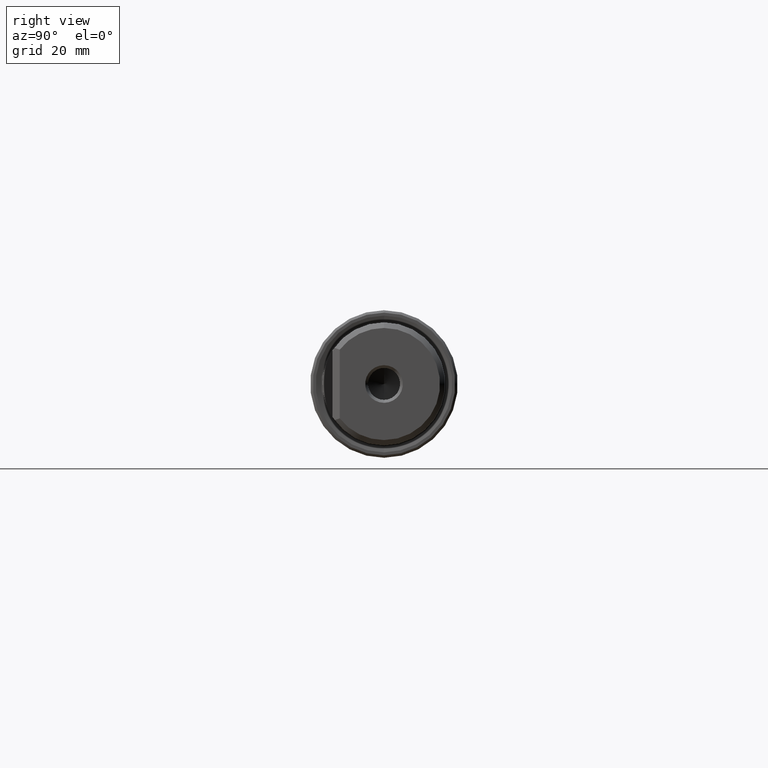
[diagram: clean part render]
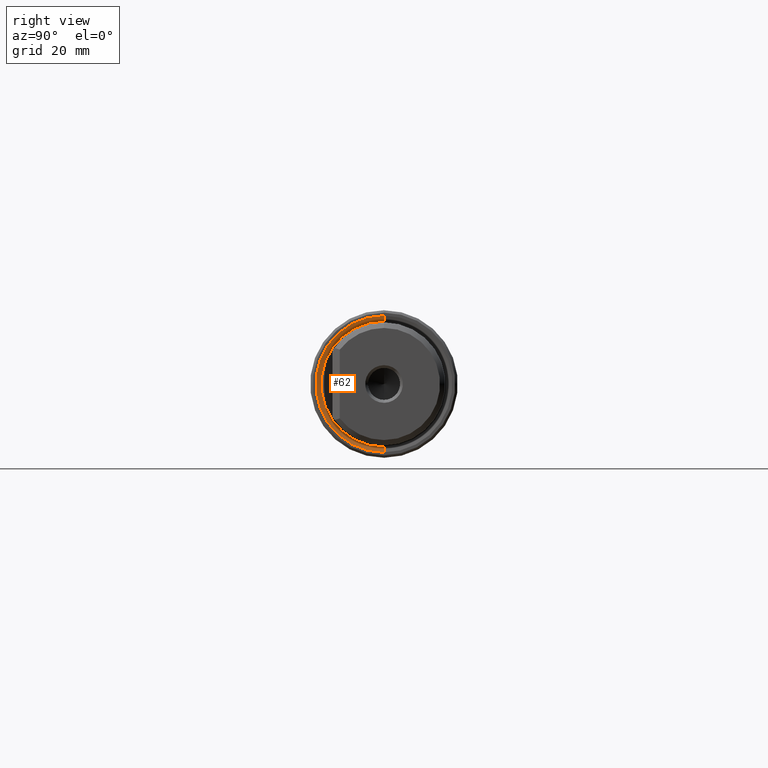
[diagram: same view with one face highlighted and labeled with its STEP entity id]
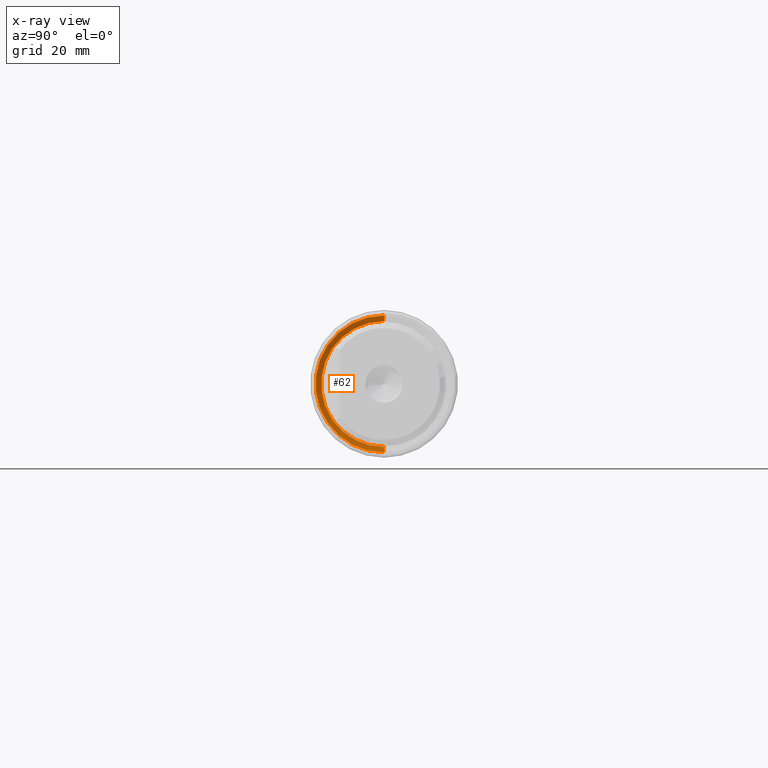
[diagram: x-ray of the same camera — body ghosted, the highlighted face saturated]
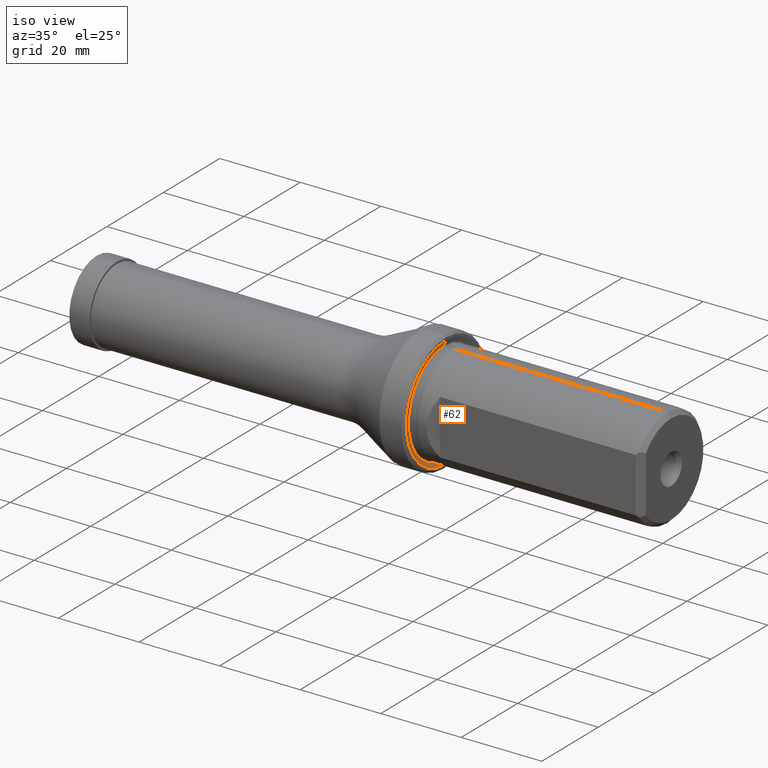
[diagram: same view with one face highlighted and labeled with its STEP entity id]
A machine part, right view. The second image highlights one B-rep face of the part: STEP entity #62.
The next image is the same camera in x-ray: the body ghosted, the highlighted face saturated — about 0% of this face is hidden behind the body in this view.
A second angle (iso view) of the same face is appended — the face is thin or edge-on in the first view.
In plain terms, the highlighted conical surface has half-angle 74.85 deg.
Its self-contained STEP definition (entity closure, byte-faithful):
#5 = VERTEX_POINT ( 'NONE', #515 ) ;
#41 = AXIS2_PLACEMENT_3D ( 'NONE', #94, #136, #1020 ) ;
#55 = AXIS2_PLACEMENT_3D ( 'NONE', #219, #215, #90 ) ;
#62 = ADVANCED_FACE ( 'NONE', ( #685 ), #877, .F. ) ;
#82 = CARTESIAN_POINT ( 'NONE',  ( 86.10000000000000900, 0.0000000000000000000, -13.90000000000000900 ) ) ;
#90 = DIRECTION ( 'NONE',  ( 0.0000000000000000000, 0.0000000000000000000, -1.000000000000000000 ) ) ;
#94 = CARTESIAN_POINT ( 'NONE',  ( 86.10000000000000900, 0.0000000000000000000, 0.0000000000000000000 ) ) ;
#136 = DIRECTION ( 'NONE',  ( 1.000000000000000000, -0.0000000000000000000, -0.0000000000000000000 ) ) ;
#142 = DIRECTION ( 'NONE',  ( 0.2613549732255697800, 0.0000000000000000000, -0.9652427559791690900 ) ) ;
#149 = ORIENTED_EDGE ( 'NONE', *, *, #400, .F. ) ;
#168 = VERTEX_POINT ( 'NONE', #834 ) ;
#171 = AXIS2_PLACEMENT_3D ( 'NONE', #439, #870, #1233 ) ;
#176 = VECTOR ( 'NONE', #142, 1000.000000000000000 ) ;
#182 = CARTESIAN_POINT ( 'NONE',  ( 86.10000000000000900, 1.702259050814822100E-015, 13.90000000000000900 ) ) ;
#197 = DIRECTION ( 'NONE',  ( 0.2613549732255697800, 1.182081451510059100E-016, 0.9652427559791690900 ) ) ;
#215 = DIRECTION ( 'NONE',  ( 1.000000000000000000, -0.0000000000000000000, -0.0000000000000000000 ) ) ;
#219 = CARTESIAN_POINT ( 'NONE',  ( 85.80000000000001100, 0.0000000000000000000, 0.0000000000000000000 ) ) ;
#242 = VERTEX_POINT ( 'NONE', #1027 ) ;
#245 = ORIENTED_EDGE ( 'NONE', *, *, #370, .F. ) ;
#251 = ORIENTED_EDGE ( 'NONE', *, *, #387, .T. ) ;
#370 = EDGE_CURVE ( 'NONE', #168, #494, #610, .T. ) ;
#373 = EDGE_CURVE ( 'NONE', #168, #242, #563, .T. ) ;
#387 = EDGE_CURVE ( 'NONE', #242, #5, #476, .T. ) ;
#400 = EDGE_CURVE ( 'NONE', #494, #5, #709, .T. ) ;
#439 = CARTESIAN_POINT ( 'NONE',  ( 86.10000000000000900, 0.0000000000000000000, 0.0000000000000000000 ) ) ;
#476 = CIRCLE ( 'NONE', #41, 13.90000000000000900 ) ;
#494 = VERTEX_POINT ( 'NONE', #971 ) ;
#515 = CARTESIAN_POINT ( 'NONE',  ( 86.10000000000000900, 0.0000000000000000000, -13.90000000000000900 ) ) ;
#563 = LINE ( 'NONE', #182, #1066 ) ;
#610 = CIRCLE ( 'NONE', #55, 12.79203245983837100 ) ;
#635 = ORIENTED_EDGE ( 'NONE', *, *, #373, .T. ) ;
#685 = FACE_OUTER_BOUND ( 'NONE', #781, .T. ) ;
#709 = LINE ( 'NONE', #82, #176 ) ;
#781 = EDGE_LOOP ( 'NONE', ( #245, #635, #251, #149 ) ) ;
#834 = CARTESIAN_POINT ( 'NONE',  ( 85.80000000000001100, 1.566572160653010900E-015, 12.79203245983837600 ) ) ;
#870 = DIRECTION ( 'NONE',  ( 1.000000000000000000, -0.0000000000000000000, -0.0000000000000000000 ) ) ;
#877 = CONICAL_SURFACE ( 'NONE', #171, 13.90000000000000900, 1.306370625903561700 ) ;
#971 = CARTESIAN_POINT ( 'NONE',  ( 85.80000000000001100, 0.0000000000000000000, -12.79203245983837600 ) ) ;
#1020 = DIRECTION ( 'NONE',  ( 0.0000000000000000000, 0.0000000000000000000, -1.000000000000000000 ) ) ;
#1027 = CARTESIAN_POINT ( 'NONE',  ( 86.10000000000000900, 1.702259050814822100E-015, 13.90000000000000900 ) ) ;
#1066 = VECTOR ( 'NONE', #197, 1000.000000000000000 ) ;
#1233 = DIRECTION ( 'NONE',  ( 0.0000000000000000000, 0.0000000000000000000, -1.000000000000000000 ) ) ;